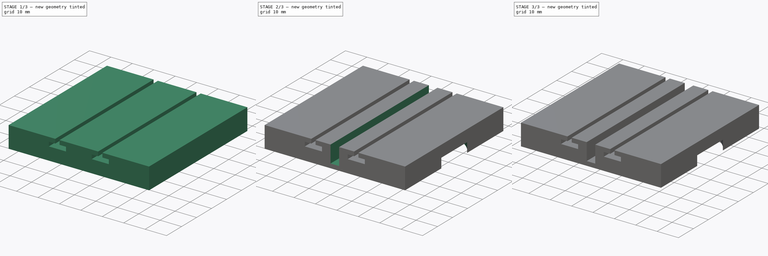
[diagram: build sequence overview — one tinted view per stage of 3, left to right]
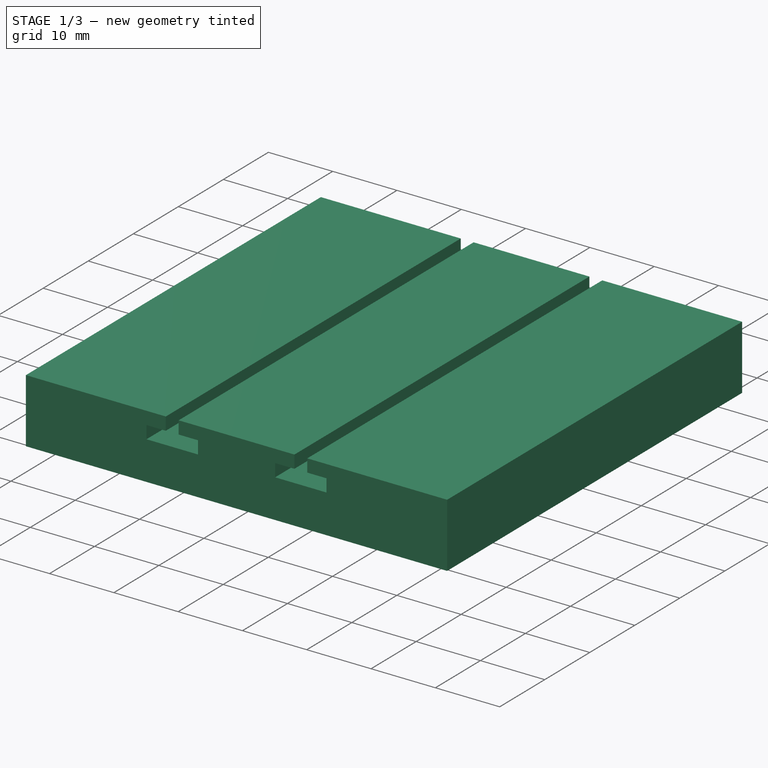
[diagram: stage 1 of 3 — iso view after this stage's code; geometry added in this stage tinted green]
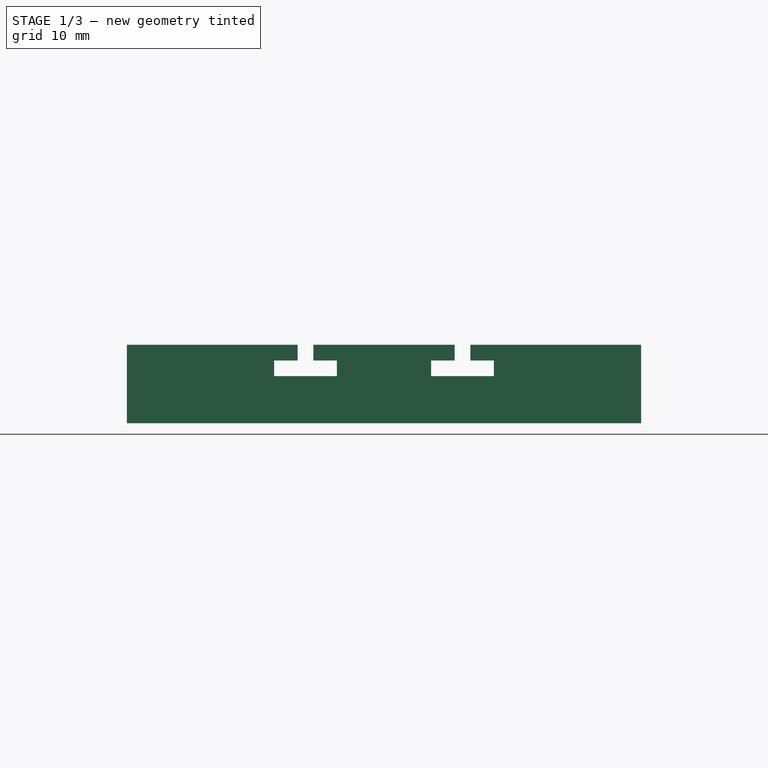
[diagram: stage 1 of 3 — front view after this stage's code; geometry added in this stage tinted green]
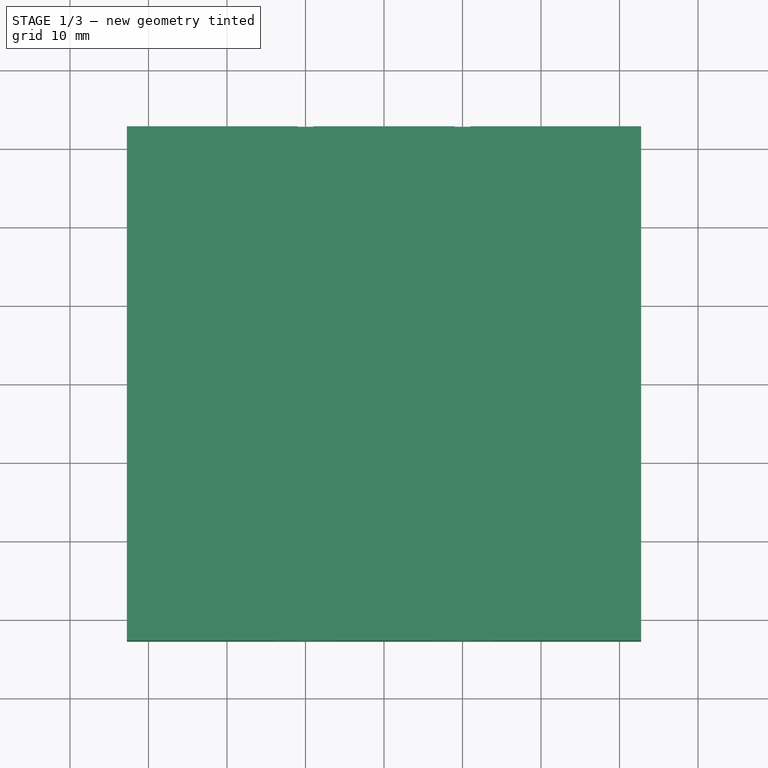
[diagram: stage 1 of 3 — top view after this stage's code; geometry added in this stage tinted green]
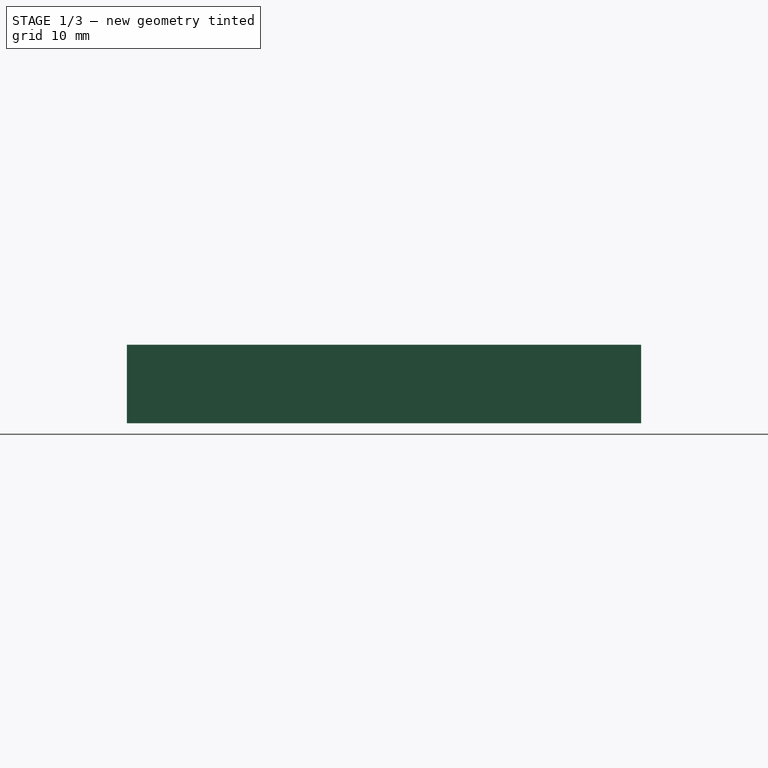
[diagram: stage 1 of 3 — right view after this stage's code; geometry added in this stage tinted green]
FCSTD DOCUMENT  (FreeCAD 0.20R29177 (Git))
Label: 10mmAnalogueAdjSprocketHolder.RevC
License: All rights reserved
LicenseURL: http://en.wikipedia.org/wiki/All_rights_reserved
objects: Sketcher::SketchObject×6, PartDesign::Pad×3, PartDesign::Pocket×3, PartDesign::Chamfer×1, PartDesign::Body×1
note: 21 computed .brp shape members not serialized (recipe doc carries the construction recipe); baked Part::Feature solids carry a one-line shape summary decoded from their .brp

FEATURE [Sketcher::SketchObject] Sketch
  FullyConstrained = true
  MapMode = 5
  Support = -> [XY_Plane]
  sketch-geometry (4):
    g0: LineSegment StartX=-32.75 StartY=32.75 StartZ=0 EndX=32.75 EndY=32.75 EndZ=0
    g1: LineSegment StartX=32.75 StartY=32.75 StartZ=0 EndX=32.75 EndY=-32.75 EndZ=0
    g2: LineSegment StartX=32.75 StartY=-32.75 StartZ=0 EndX=-32.75 EndY=-32.75 EndZ=0
    g3: LineSegment StartX=-32.75 StartY=-32.75 StartZ=0 EndX=-32.75 EndY=32.75 EndZ=0
  constraints (11):
    c: Coincident(g0,g1)
    c: Coincident(g1,g2)
    c: Coincident(g2,g3)
    c: Coincident(g3,g0)
    c: Horizontal(g0)
    c: Horizontal(g2)
    c: Vertical(g1)
    c: Vertical(g3)
    c: Symmetric(g1,g0,g-1)
    c: Equal(g0,g3)
    c: DistanceX(g0,g0) = 65.5
FEATURE [PartDesign::Pad] Pad
  Direction = (0,0,1)
  Length = 10
  Length2 = 10
  Profile = -> Sketch
  ReferenceAxis = -> Sketch [N_Axis]
  Type = 0
FEATURE [Sketcher::SketchObject] Sketch001
  ExternalGeometry = -> [Pad]
  FullyConstrained = true
  MapMode = 5
  Placement = pos=(0,-32.75,0) rot=(1,0,0;1.5708rad)
  Support = -> [Pad]
  sketch-geometry (17):
    g0: LineSegment StartX=-11 StartY=10 StartZ=0 EndX=-11 EndY=8 EndZ=0
    g1: LineSegment StartX=-11 StartY=8 StartZ=0 EndX=-14 EndY=8 EndZ=0
    g2: LineSegment StartX=-14 StartY=8 StartZ=0 EndX=-14 EndY=6 EndZ=0
    g3: LineSegment StartX=-14 StartY=6 StartZ=0 EndX=-6.00001 EndY=6 EndZ=0
    g4: LineSegment StartX=-6.00001 StartY=6 StartZ=0 EndX=-6.00001 EndY=8 EndZ=0
    g5: LineSegment StartX=-6.00001 StartY=8 StartZ=0 EndX=-9.00001 EndY=8 EndZ=0
    g6: LineSegment StartX=-9.00001 StartY=8 StartZ=0 EndX=-8.99999 EndY=10 EndZ=0
    g7: LineSegment StartX=8.99999 StartY=10 StartZ=0 EndX=8.99999 EndY=8 EndZ=0
    g8: LineSegment StartX=8.99999 StartY=8 StartZ=0 EndX=5.99999 EndY=8 EndZ=0
    g9: LineSegment StartX=5.99999 StartY=8 StartZ=0 EndX=5.99999 EndY=6 EndZ=0
    g10: LineSegment StartX=5.99999 StartY=6 StartZ=0 EndX=14 EndY=6 EndZ=0
    g11: LineSegment StartX=14 StartY=6 StartZ=0 EndX=14 EndY=8 EndZ=0
    g12: LineSegment StartX=14 StartY=8 StartZ=0 EndX=11 EndY=8 EndZ=0
    g13: LineSegment StartX=11 StartY=8 StartZ=0 EndX=11 EndY=10 EndZ=0
    g14: GeomPoint X=-10 Y=10 Z=0
    g15: LineSegment StartX=-11 StartY=10 StartZ=0 EndX=-8.99999 EndY=10 EndZ=0
    g16: LineSegment StartX=8.99999 StartY=10 StartZ=0 EndX=11 EndY=10 EndZ=0
  constraints (49):
    c: PointOnObject(g0,g-3)
    c: Vertical(g0)
    c: Coincident(g0,g1)
    c: Horizontal(g1)
    c: Coincident(g1,g2)
    c: Coincident(g2,g3)
    c: Horizontal(g3)
    c: Coincident(g3,g4)
    c: Vertical(g4)
    c: Coincident(g4,g5)
    c: Horizontal(g5)
    c: Coincident(g5,g6)
    c: PointOnObject(g6,g-3)
    c: Coincident(g7,g8)
    c: Horizontal(g8)
    c: Coincident(g8,g9)
    c: Coincident(g9,g10)
    c: Horizontal(g10)
    c: Coincident(g10,g11)
    c: Vertical(g11)
    c: Coincident(g11,g12)
    c: Horizontal(g12)
    c: Coincident(g12,g13)
    c: PointOnObject(g13,g-3)
    c: Vertical(g13)
    c: Vertical(g7)
    c: Equal(g0,g6)
    c: Equal(g6,g7)
    c: Equal(g7,g13)
    c: Equal(g13,g9)
    c: Equal(g9,g11)
    c: Equal(g11,g2)
    c: Equal(g2,g4)
    c: Vertical(g2)
    c: Equal(g3,g10)
    c: Equal(g1,g5)
    c: Equal(g5,g8)
    c: Equal(g8,g12)
    c: Symmetric(g6,g7,g-2)
    c: DistanceY(g6,g6) = 2
    c: DistanceX(g1,g1) = 3
    c: DistanceX(g3,g3) = 8
    c: DistanceX(g-3,g-1) = 32.75
    c: Symmetric(g6,g0,g14)
    c: DistanceX(g14,g-1) = 10
    c: Coincident(g15,g0)
    c: Coincident(g15,g6)
    c: Coincident(g16,g7)
    c: Coincident(g16,g13)
FEATURE [PartDesign::Pocket] Pocket
  BaseFeature = -> Pad
  Direction = (0,1,-2e-16)
  Length = 5
  Length2 = 5
  Profile = -> Sketch001
  ReferenceAxis = -> Sketch001 [N_Axis]
  Type = 1
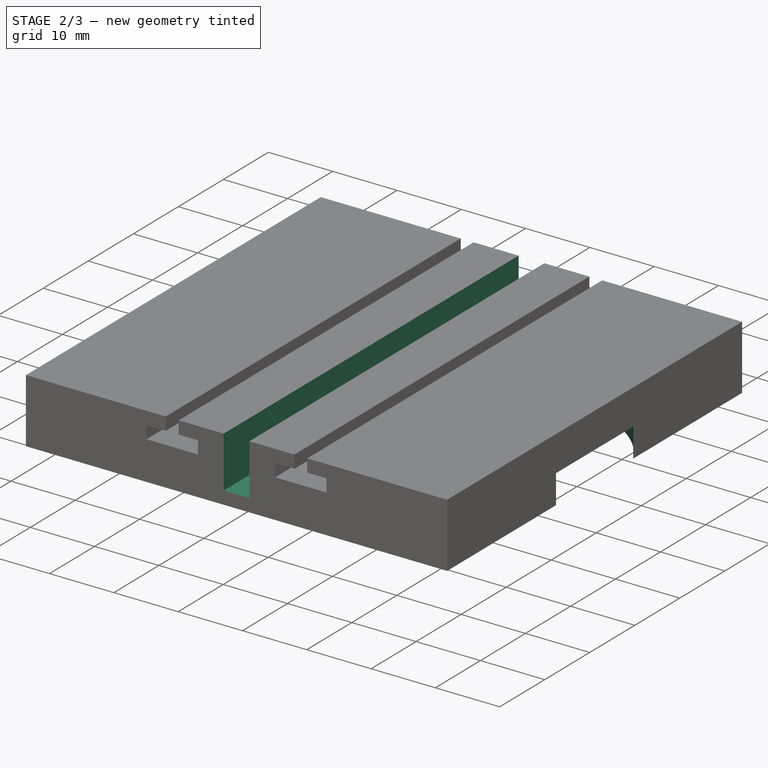
[diagram: stage 2 of 3 — iso view after this stage's code; geometry added in this stage tinted green]
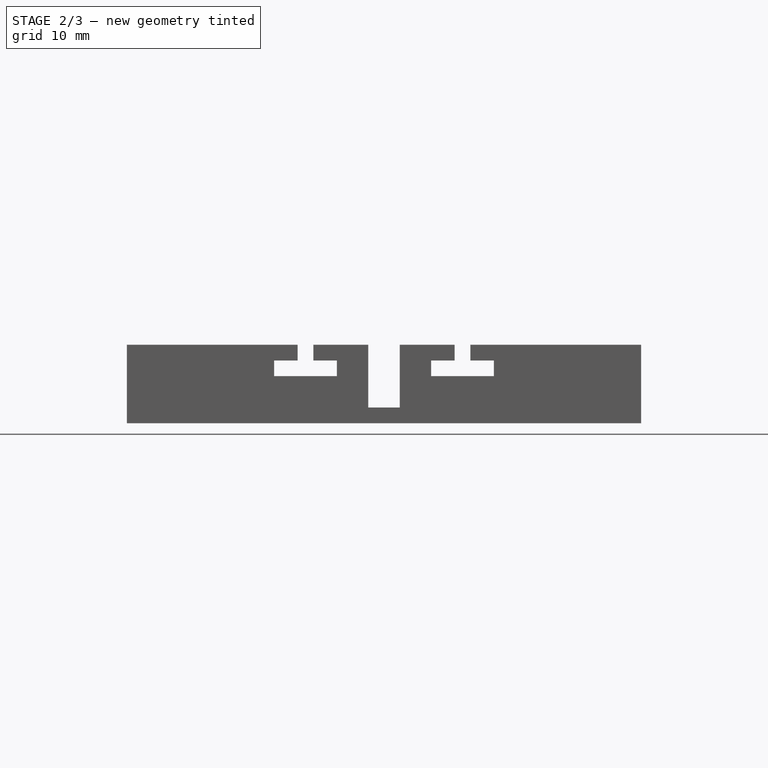
[diagram: stage 2 of 3 — front view after this stage's code; geometry added in this stage tinted green]
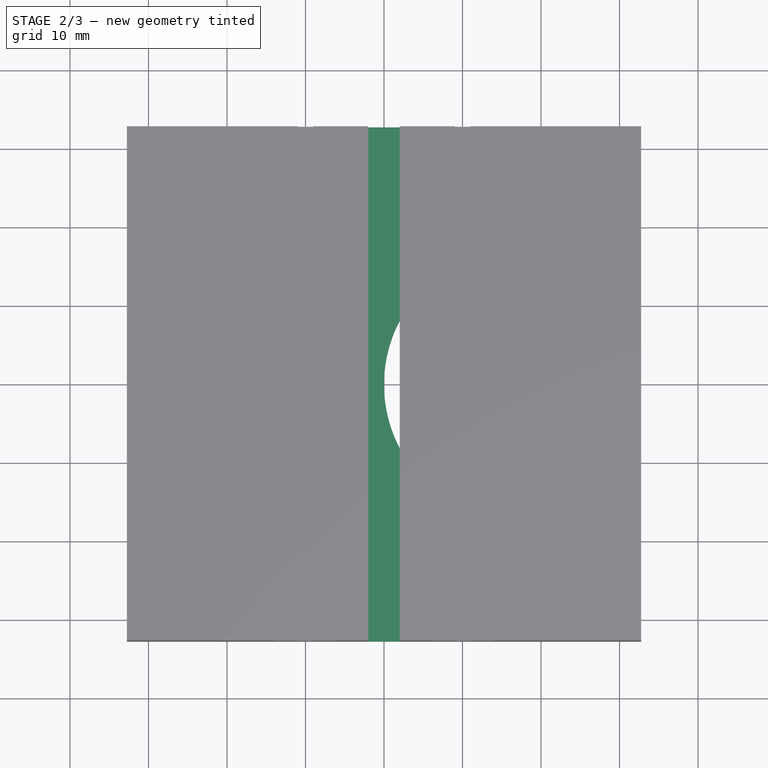
[diagram: stage 2 of 3 — top view after this stage's code; geometry added in this stage tinted green]
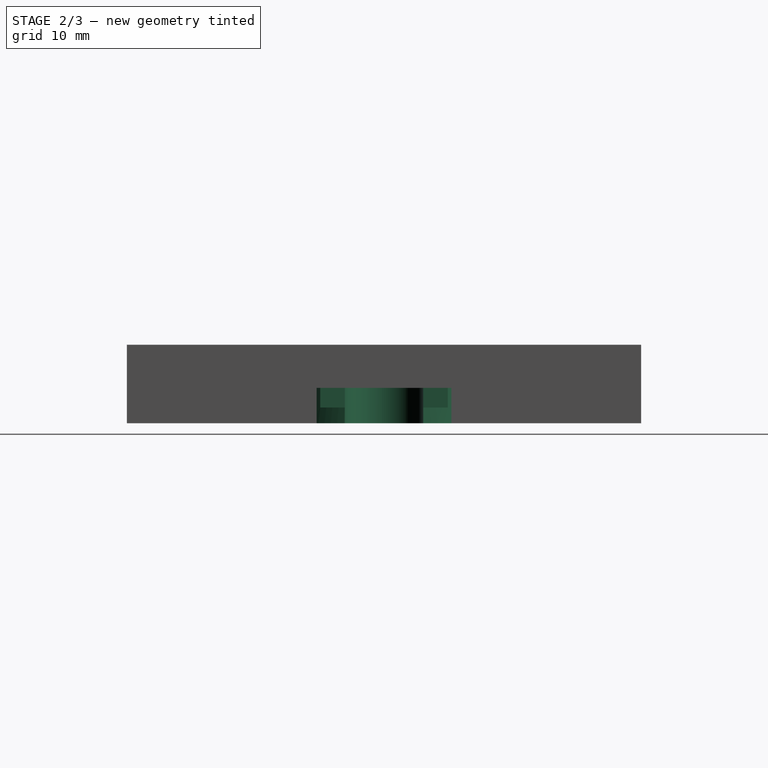
[diagram: stage 2 of 3 — right view after this stage's code; geometry added in this stage tinted green]
FEATURE [Sketcher::SketchObject] Sketch002
  ExternalGeometry = -> [Pocket]
  FullyConstrained = true
  MapMode = 5
  Placement = pos=(0,0,10) rot=(0,0,1;0rad)
  Support = -> [Pocket]
  sketch-geometry (4):
    g0: LineSegment StartX=-2 StartY=32.75 StartZ=0 EndX=2 EndY=32.75 EndZ=0
    g1: LineSegment StartX=2 StartY=32.75 StartZ=0 EndX=2 EndY=-32.75 EndZ=0
    g2: LineSegment StartX=2 StartY=-32.75 StartZ=0 EndX=-2 EndY=-32.75 EndZ=0
    g3: LineSegment StartX=-2 StartY=-32.75 StartZ=0 EndX=-2 EndY=32.75 EndZ=0
  constraints (11):
    c: Coincident(g0,g1)
    c: Coincident(g1,g2)
    c: Coincident(g2,g3)
    c: Coincident(g3,g0)
    c: Horizontal(g0)
    c: Vertical(g1)
    c: Vertical(g3)
    c: PointOnObject(g0,g-3)
    c: PointOnObject(g1,g-4)
    c: DistanceX(g2,g2) = 4
    c: Symmetric(g2,g1,g-2)
FEATURE [PartDesign::Pocket] Pocket001  label="CenterStraightGear"
  BaseFeature = -> Pocket
  Direction = (0,0,-1)
  Length = 8
  Length2 = 5
  Profile = -> Sketch002
  ReferenceAxis = -> Sketch002 [N_Axis]
  Type = 0
FEATURE [Sketcher::SketchObject] Sketch003
  ExternalGeometry = -> [Pocket001]
  FullyConstrained = true
  MapMode = 5
  Placement = pos=(0,0,0) rot=(1,0,0;3.14159rad)
  Support = -> [Pocket001]
  sketch-geometry (1):
    g0: Circle CenterX=17.5 CenterY=0 CenterZ=0 NormalX=0 NormalY=0 NormalZ=1 AngleXU=0 Radius=17.5
  constraints (3):
    c: PointOnObject(g0,g-1)
    c: Diameter(g0) = 35
    c: Tangent(g0,g-2)
FEATURE [PartDesign::Pocket] Pocket002  label="GearHole"
  BaseFeature = -> Pocket001
  Direction = (0,0,1)
  Length = 4.5
  Length2 = 5
  Profile = -> Sketch003
  ReferenceAxis = -> Sketch003 [N_Axis]
  Type = 0
FEATURE [Sketcher::SketchObject] Sketch004
  ExternalGeometry = -> [Pocket002]
  FullyConstrained = true
  MapMode = 5
  Placement = pos=(0,0,4.5) rot=(1,0,0;3.14159rad)
  Support = -> [Pocket002]
  sketch-geometry (1):
    g0: Circle CenterX=17.5 CenterY=0 CenterZ=0 NormalX=0 NormalY=0 NormalZ=1 AngleXU=0 Radius=5
  constraints (2):
    c: Coincident(g0,g-3)
    c: Diameter(g0) = 10
FEATURE [PartDesign::Pad] Pad001  label="GearCenterPost"
  BaseFeature = -> Pocket002
  Direction = (0,0,-1)
  Length = 4.5
  Length2 = 10
  Profile = -> Sketch004
  ReferenceAxis = -> Sketch004 [N_Axis]
  Type = 0
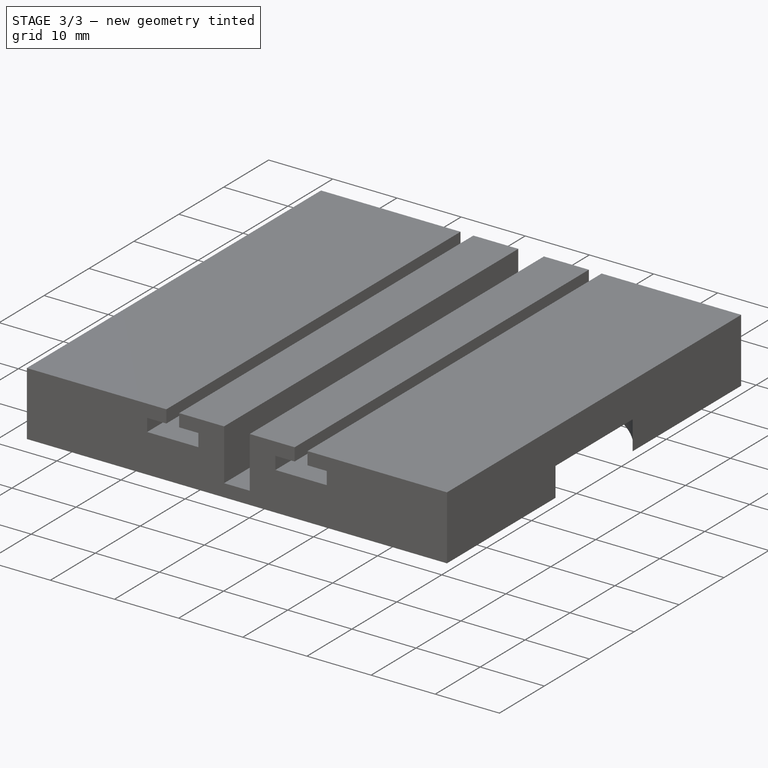
[diagram: stage 3 of 3 — iso view after this stage's code; geometry added in this stage tinted green]
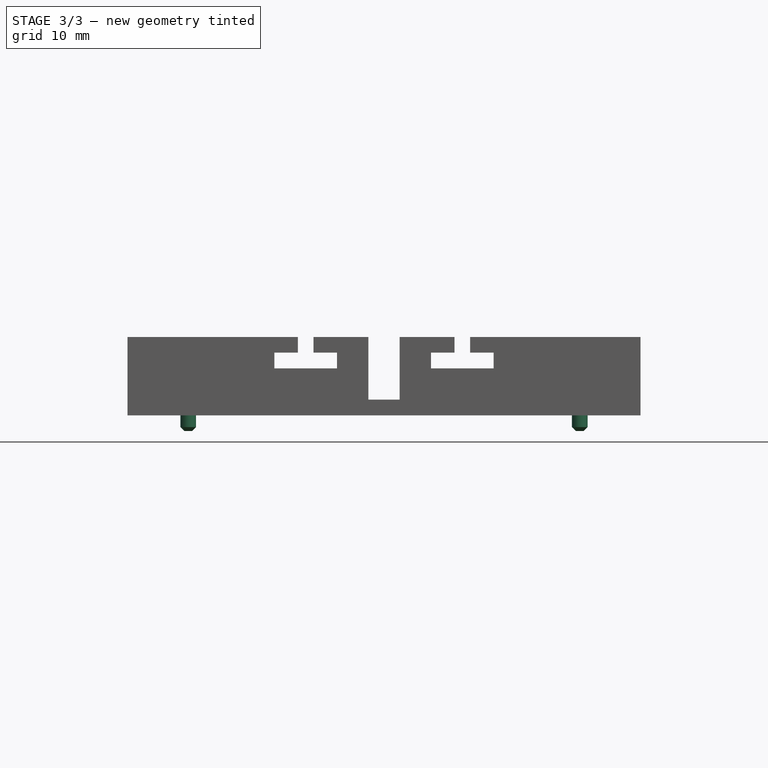
[diagram: stage 3 of 3 — front view after this stage's code; geometry added in this stage tinted green]
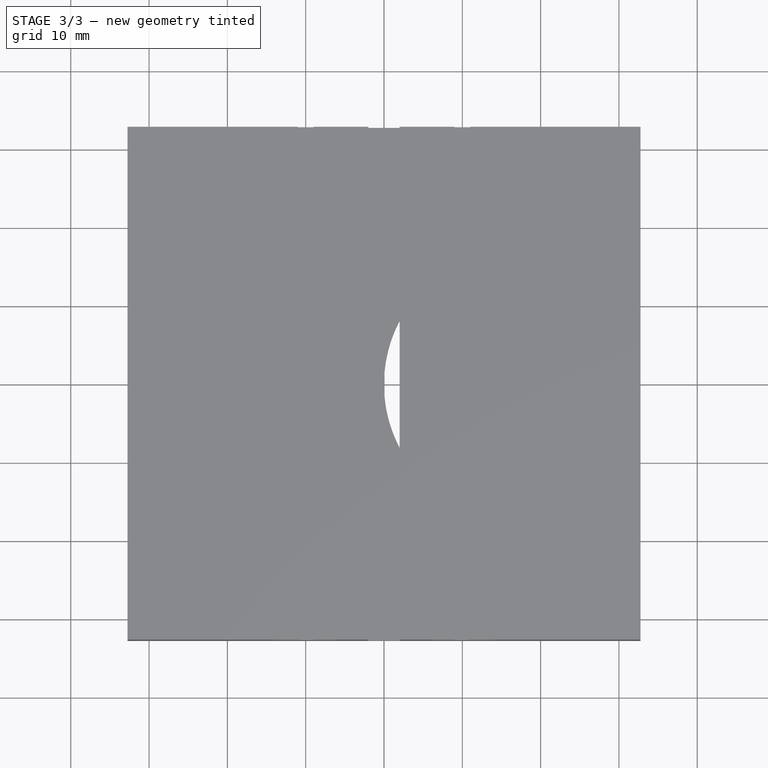
[diagram: stage 3 of 3 — top view after this stage's code; geometry added in this stage tinted green]
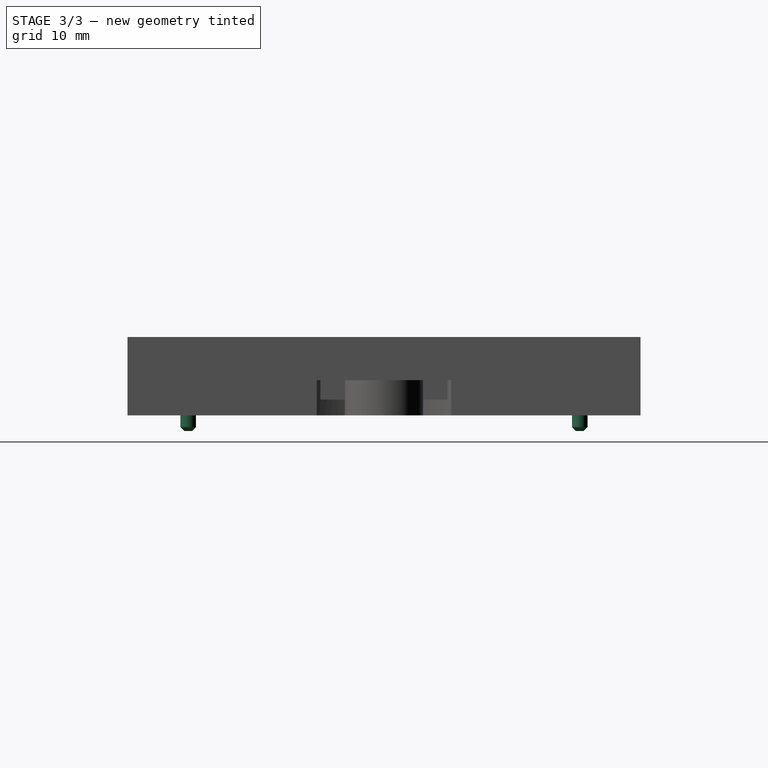
[diagram: stage 3 of 3 — right view after this stage's code; geometry added in this stage tinted green]
FEATURE [Sketcher::SketchObject] Sketch005
  FullyConstrained = true
  MapMode = 5
  Placement = pos=(0,0,0) rot=(1,0,0;3.14159rad)
  Support = -> [Pad001]
  sketch-geometry (4):
    g0: Circle CenterX=-25 CenterY=25 CenterZ=0 NormalX=0 NormalY=0 NormalZ=1 AngleXU=0 Radius=1
    g1: Circle CenterX=25 CenterY=25 CenterZ=0 NormalX=0 NormalY=0 NormalZ=1 AngleXU=0 Radius=1
    g2: Circle CenterX=-25 CenterY=-25 CenterZ=0 NormalX=0 NormalY=0 NormalZ=1 AngleXU=0 Radius=1
    g3: Circle CenterX=25 CenterY=-25 CenterZ=0 NormalX=0 NormalY=0 NormalZ=1 AngleXU=0 Radius=1
  constraints (11):
    c: Horizontal(g0,g1)
    c: Horizontal(g2,g3)
    c: Vertical(g0,g2)
    c: Vertical(g1,g3)
    c: Symmetric(g0,g3,g-1)
    c: Equal(g0,g1)
    c: Equal(g1,g2)
    c: Equal(g2,g3)
    c: Diameter(g0) = 2
    c: DistanceY(g-1,g1) = 25
    c: DistanceX(g-1,g1) = 25
FEATURE [PartDesign::Pad] Pad002
  BaseFeature = -> Pad001
  Direction = (0,0,-1)
  Length = 2
  Length2 = 10
  Profile = -> Sketch005
  ReferenceAxis = -> Sketch005 [N_Axis]
  Type = 0
FEATURE [PartDesign::Chamfer] Chamfer
  Angle = 45
  Base = -> Pad002 [Edge90,Edge94,Edge96,Edge92]
  BaseFeature = -> Pad002
  ChamferType = 0
  FlipDirection = false
  Size = 0.5
  Size2 = 1
  SupportTransform = false
  UseAllEdges = false
FEATURE [PartDesign::Body] Body
  Group = -> [Sketch,Pad,Sketch001,Pocket,Sketch002,Pocket001,Sketch003,Pocket002,Sketch004,Pad001,Sketch005,Pad002,Chamfer]
  Origin = -> Origin
  Tip = -> Chamfer
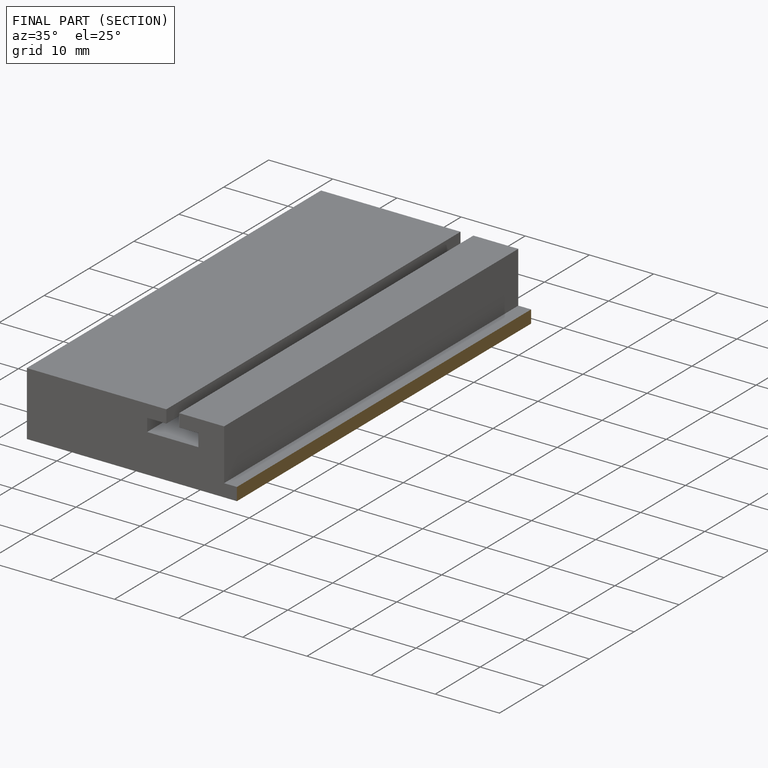
[diagram: finished part — half-section view (interior)]
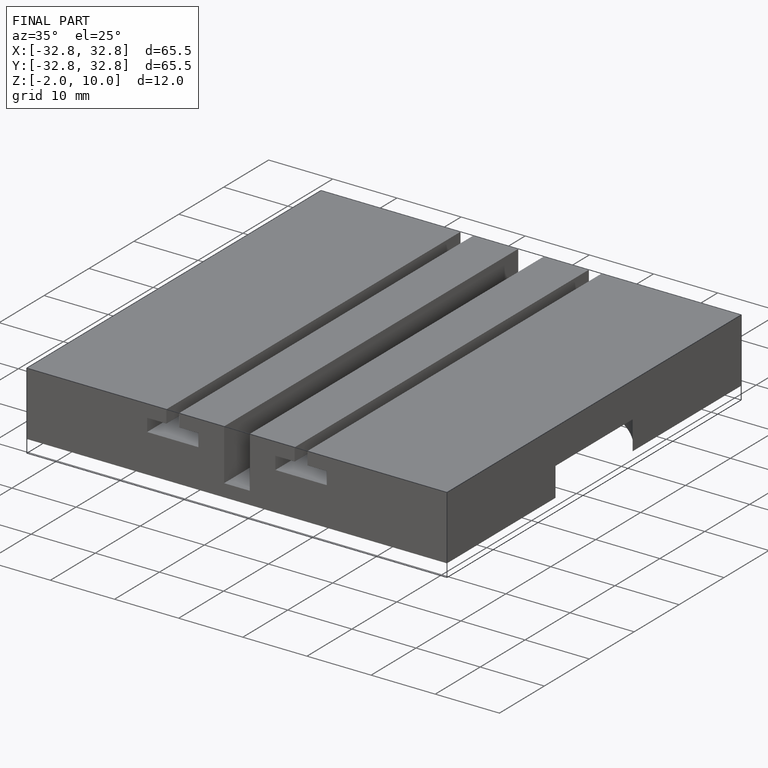
[diagram: finished part — iso view with bounding-box wireframe]
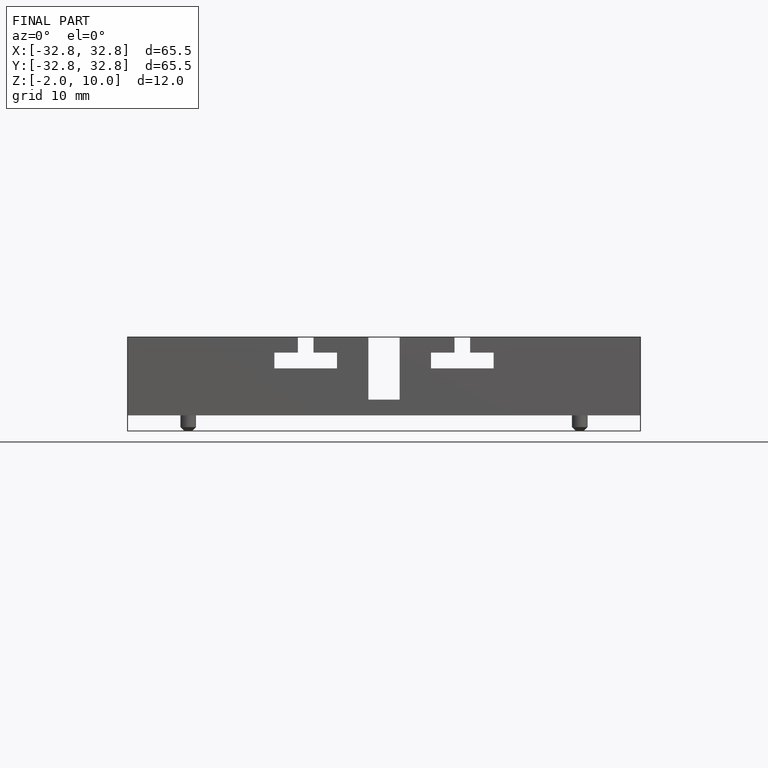
[diagram: finished part — front view with bounding-box wireframe]
